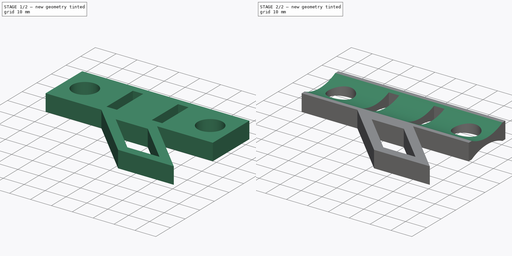
[diagram: build sequence overview — one tinted view per stage of 2, left to right]
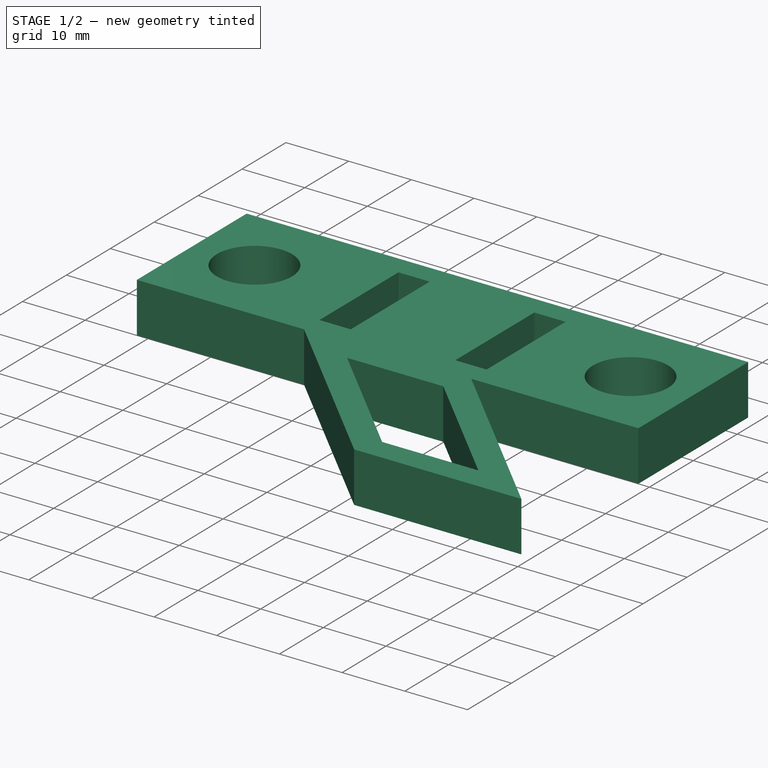
[diagram: stage 1 of 2 — iso view after this stage's code; geometry added in this stage tinted green]
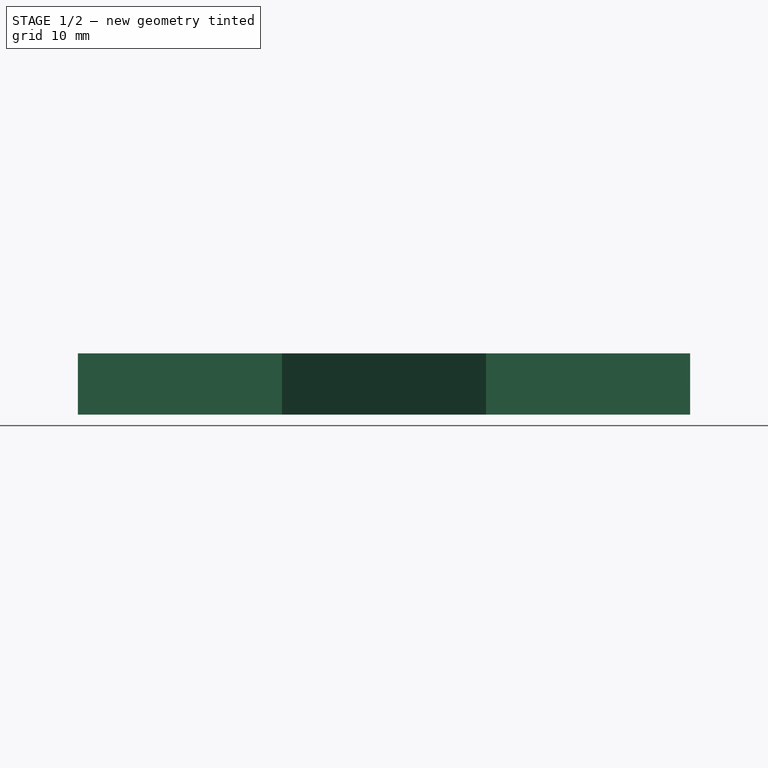
[diagram: stage 1 of 2 — front view after this stage's code; geometry added in this stage tinted green]
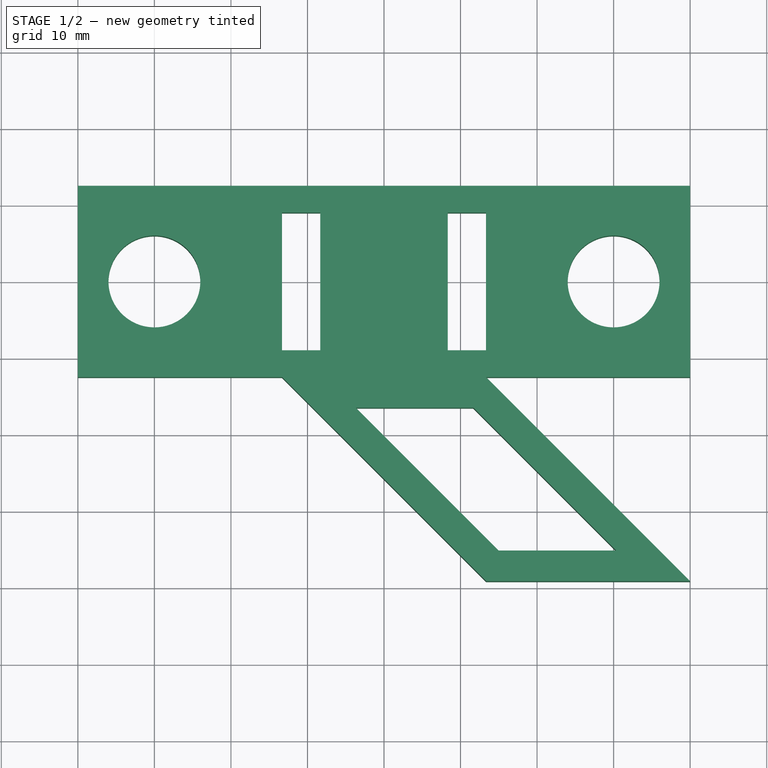
[diagram: stage 1 of 2 — top view after this stage's code; geometry added in this stage tinted green]
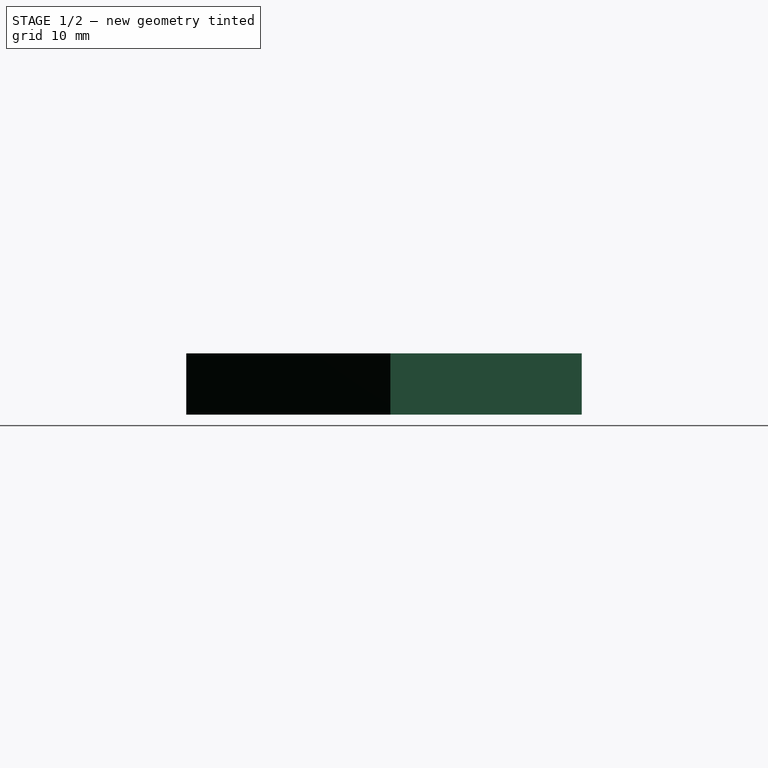
[diagram: stage 1 of 2 — right view after this stage's code; geometry added in this stage tinted green]
FCSTD DOCUMENT  (FreeCAD 0.20R27319 (Git))
Label: TapeMitre
License: All rights reserved
LicenseURL: http://en.wikipedia.org/wiki/All_rights_reserved
objects: Sketcher::SketchObject×2, PartDesign::Pad×1, PartDesign::Pocket×1, PartDesign::Body×1
note: 7 computed .brp shape members not serialized (recipe doc carries the construction recipe); baked Part::Feature solids carry a one-line shape summary decoded from their .brp

FEATURE [Sketcher::SketchObject] Sketch
  FullyConstrained = true
  MapMode = 5
  Support = -> [XY_Plane]
  sketch-geometry (27):
    g0: LineSegment StartX=-40 StartY=12.5 StartZ=0 EndX=-40 EndY=-12.5 EndZ=0
    g1: LineSegment StartX=-40 StartY=-12.5 StartZ=0 EndX=-13.3333 EndY=-12.5 EndZ=0
    g2: LineSegment StartX=40 StartY=-12.5 StartZ=0 EndX=40 EndY=12.5 EndZ=0
    g3: LineSegment StartX=40 StartY=12.5 StartZ=0 EndX=-40 EndY=12.5 EndZ=0
    g4: GeomPoint X=0 Y=0 Z=0
    g5: LineSegment StartX=-13.3333 StartY=-12.5 StartZ=0 EndX=13.3333 EndY=-39.1667 EndZ=0
    g6: LineSegment StartX=13.3333 StartY=-39.1667 StartZ=0 EndX=40 EndY=-39.1667 EndZ=0
    g7: LineSegment StartX=40 StartY=-39.1667 StartZ=0 EndX=13.3333 EndY=-12.5 EndZ=0
    g8: LineSegment StartX=13.3333 StartY=-12.5 StartZ=0 EndX=40 EndY=-12.5 EndZ=0
    g9: LineSegment StartX=-13.3333 StartY=9 StartZ=0 EndX=-13.3333 EndY=-9 EndZ=0
    g10: LineSegment StartX=-13.3333 StartY=-9 StartZ=0 EndX=-8.33333 EndY=-9 EndZ=0
    g11: LineSegment StartX=-8.33333 StartY=-9 StartZ=0 EndX=-8.33333 EndY=9 EndZ=0
    g12: LineSegment StartX=-8.33333 StartY=9 StartZ=0 EndX=-13.3333 EndY=9 EndZ=0
    g13: GeomPoint X=-10.8333 Y=0 Z=0
    g14: LineSegment StartX=8.33333 StartY=9 StartZ=0 EndX=8.33333 EndY=-9 EndZ=0
    g15: LineSegment StartX=8.33333 StartY=-9 StartZ=0 EndX=13.3333 EndY=-9 EndZ=0
    g16: LineSegment StartX=13.3333 StartY=-9 StartZ=0 EndX=13.3333 EndY=9 EndZ=0
    g17: LineSegment StartX=13.3333 StartY=9 StartZ=0 EndX=8.33333 EndY=9 EndZ=0
    g18: GeomPoint X=10.8333 Y=0 Z=0
    g19: Circle CenterX=-30 CenterY=0 CenterZ=0 NormalX=0 NormalY=0 NormalZ=1 AngleXU=0 Radius=6
    g20: Circle CenterX=30 CenterY=0 CenterZ=0 NormalX=0 NormalY=0 NormalZ=1 AngleXU=0 Radius=6
    g21: LineSegment StartX=-3.67648 StartY=-16.5 StartZ=0 EndX=11.6765 EndY=-16.5 EndZ=0
    g22: LineSegment StartX=11.6765 StartY=-16.5 StartZ=0 EndX=30.3431 EndY=-35.1667 EndZ=0
    g23: LineSegment StartX=30.3431 StartY=-35.1667 StartZ=0 EndX=14.9902 EndY=-35.1667 EndZ=0
    g24: LineSegment StartX=14.9902 StartY=-35.1667 StartZ=0 EndX=-3.67648 EndY=-16.5 EndZ=0
    g25: LineSegment StartX=30.3431 StartY=-35.1667 StartZ=0 EndX=33.1716 EndY=-32.3382 EndZ=0
    g26: LineSegment StartX=-3.67648 StartY=-16.5 StartZ=0 EndX=-6.50491 EndY=-19.3284 EndZ=0
  constraints (73):
    c: Coincident(g0,g1)
    c: Coincident(g8,g2)
    c: Coincident(g2,g3)
    c: Coincident(g3,g0)
    c: Horizontal(g1)
    c: Horizontal(g3)
    c: Vertical(g0)
    c: Vertical(g2)
    c: Symmetric(g8,g0,g4)
    c: Coincident(g4,g-1)
    c: Coincident(g5,g6)
    c: Horizontal(g6)
    c: Coincident(g6,g7)
    c: Coincident(g1,g5)
    c: Coincident(g8,g7)
    c: Equal(g1,g8)
    c: Angle(g1,g5) = 2.35619
    c: Angle(g7,g8) = 0.785398
    c: Vertical(g2,g6)
    c: Coincident(g9,g10)
    c: Coincident(g10,g11)
    c: Coincident(g11,g12)
    c: Coincident(g12,g9)
    c: Horizontal(g10)
    c: Horizontal(g12)
    c: Vertical(g9)
    c: Vertical(g11)
    c: Symmetric(g10,g9,g13)
    c: PointOnObject(g13,g-1)
    c: Coincident(g14,g15)
    c: Coincident(g15,g16)
    c: Coincident(g16,g17)
    c: Coincident(g17,g14)
    c: Horizontal(g15)
    c: Horizontal(g17)
    c: Vertical(g14)
    c: Vertical(g16)
    c: Symmetric(g15,g14,g18)
    c: PointOnObject(g18,g-1)
    c: Equal(g12,g17)
    c: DistanceX(g12,g12) = 5
    c: DistanceY(g0,g0) = 25
    c: DistanceY(g9,g9) = 18
    c: Equal(g6,g1)
    c: DistanceX(g3,g3) = 80
    c: Vertical(g1,g9)
    c: Horizontal(g8)
    c: Horizontal(g1,g7)
    c: Vertical(g15,g7)
    c: Equal(g11,g14)
    c: PointOnObject(g19,g-1)
    c: Radius(g19) = 6
    c: Equal(g19,g20)
    c: Symmetric(g19,g20,g-2)
    c: DistanceX(g0,g19) = 10
    c: Horizontal(g21)
    c: Coincident(g21,g22)
    c: Coincident(g22,g23)
    c: Horizontal(g23)
    c: Coincident(g23,g24)
    c: Coincident(g24,g21)
    c: Parallel(g24,g22)
    c: Parallel(g22,g5)
    c: DistanceY(g5,g23) = 4
    c: DistanceY(g21,g7) = 4
    c: Coincident(g25,g22)
    c: PointOnObject(g25,g7)
    c: Perpendicular(g7,g25)
    c: Distance(g25) = 4
    c: Coincident(g26,g21)
    c: PointOnObject(g26,g5)
    c: Perpendicular(g5,g26)
    c: Distance(g26) = 4
FEATURE [PartDesign::Pad] Pad
  Direction = (0,0,1)
  Length = 8
  Length2 = 10
  Midplane = true
  Profile = -> Sketch
  ReferenceAxis = -> Sketch [N_Axis]
  Type = 0
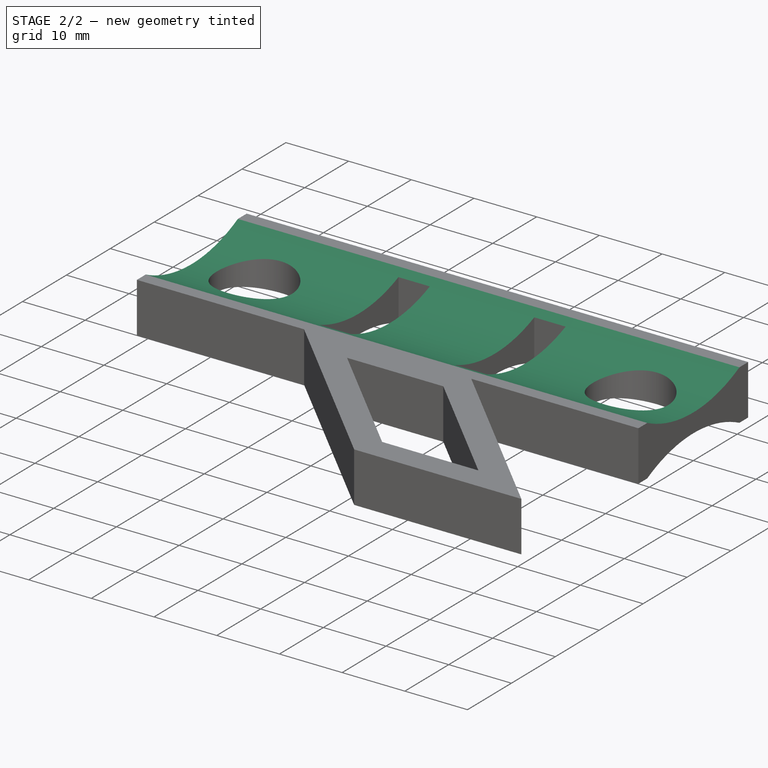
[diagram: stage 2 of 2 — iso view after this stage's code; geometry added in this stage tinted green]
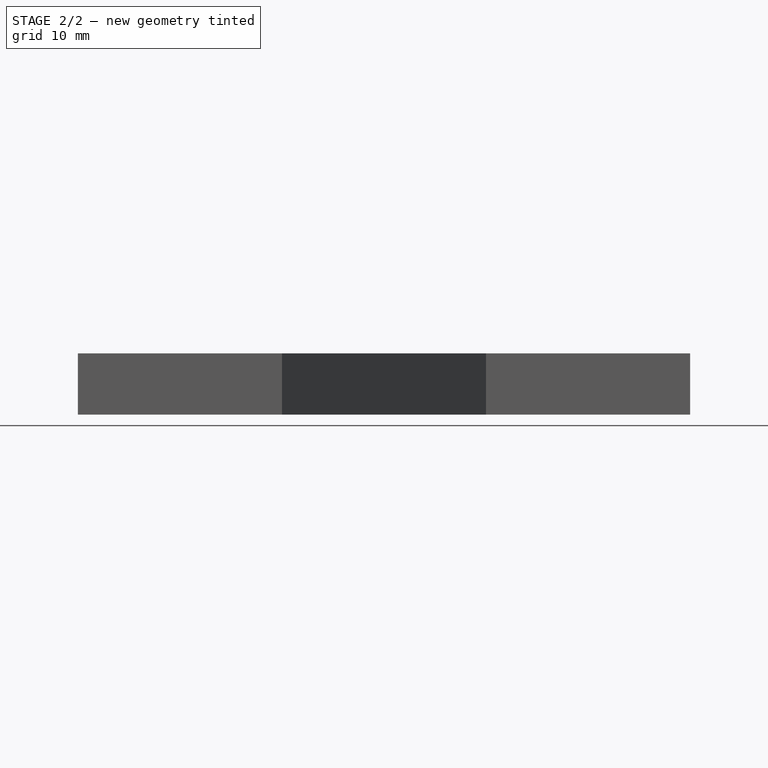
[diagram: stage 2 of 2 — front view after this stage's code; geometry added in this stage tinted green]
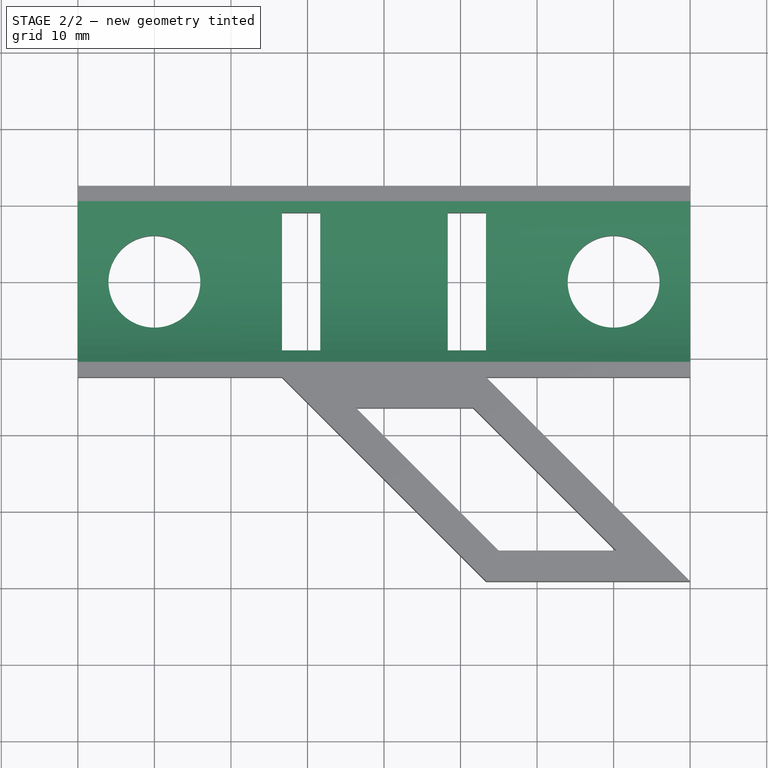
[diagram: stage 2 of 2 — top view after this stage's code; geometry added in this stage tinted green]
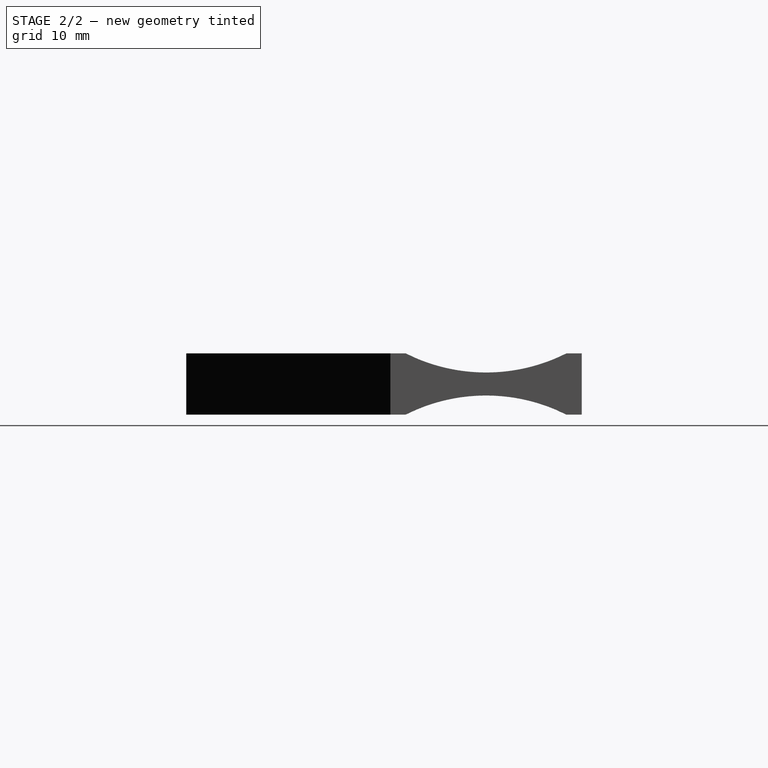
[diagram: stage 2 of 2 — right view after this stage's code; geometry added in this stage tinted green]
FEATURE [Sketcher::SketchObject] Sketch002
  ExternalGeometry = -> [Pad]
  FullyConstrained = true
  MapMode = 5
  Placement = pos=(-40,0,0) rot=(0.57735,-0.57735,-0.57735;2.0944rad)
  sketch-geometry (8):
    g0: ArcOfCircle CenterX=-2.5e-15 CenterY=24.8 CenterZ=0 NormalX=0 NormalY=0 NormalZ=1 AngleXU=0 Radius=23.3 StartAngle=4.2449 EndAngle=5.17988
    g1: LineSegment StartX=-10.5 StartY=4 StartZ=0 EndX=10.5 EndY=4 EndZ=0
    g2: LineSegment StartX=-10.5 StartY=-4 StartZ=0 EndX=10.5 EndY=-4 EndZ=0
    g3: ArcOfCircle CenterX=1.6e-15 CenterY=-24.8 CenterZ=0 NormalX=0 NormalY=0 NormalZ=1 AngleXU=0 Radius=23.3 StartAngle=1.10331 EndAngle=2.03828
    g4: LineSegment StartX=-12.5 StartY=4 StartZ=0 EndX=-10.5 EndY=4 EndZ=0
    g5: LineSegment StartX=10.5 StartY=4 StartZ=0 EndX=12.5 EndY=4 EndZ=0
    g6: GeomPoint X=0 Y=1.5 Z=0
    g7: LineSegment StartX=0 StartY=1.5 StartZ=0 EndX=0 EndY=-1.5 EndZ=0
  constraints (24):
    c: Coincident(g1,g0)
    c: Coincident(g3,g2)
    c: Coincident(g3,g2)
    c: Equal(g3,g0)
    c: Coincident(g1,g0)
    c: Horizontal(g1)
    c: PointOnObject(g0,g-3)
    c: Coincident(g4,g-3)
    c: Coincident(g4,g0)
    c: Coincident(g5,g0)
    c: Coincident(g5,g-3)
    c: Equal(g4,g5)
    c: Horizontal(g2)
    c: PointOnObject(g2,g-4)
    c: Vertical(g0,g2)
    c: Vertical(g2,g0)
    c: DistanceX(g4,g4) = 2
    c: PointOnObject(g6,g0)
    c: PointOnObject(g6,g-2)
    c: DistanceY(g6,g0) = 2.5
    c: Coincident(g7,g6)
    c: PointOnObject(g7,g3)
    c: Vertical(g7)
    c: DistanceY(g7,g7) = 3
FEATURE [PartDesign::Pocket] Pocket
  BaseFeature = -> Pad
  Direction = (1,0,0)
  Length = 5
  Length2 = 5
  Profile = -> Sketch002
  ReferenceAxis = -> Sketch002 [N_Axis]
  Type = 1
FEATURE [PartDesign::Body] Body
  Group = -> [Sketch,Pad,Sketch002,Pocket]
  Origin = -> Origin
  Tip = -> Pocket
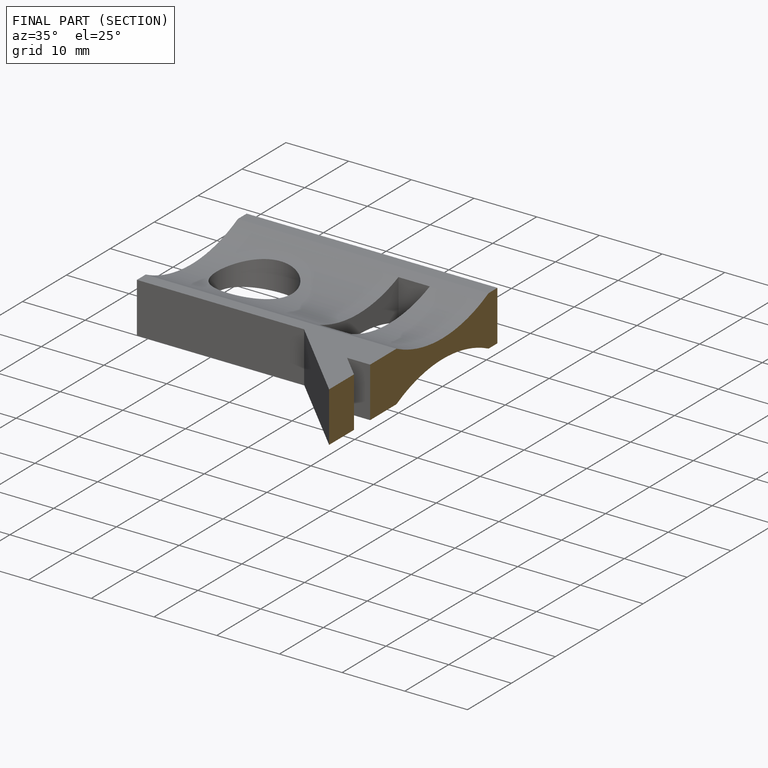
[diagram: finished part — half-section view (interior)]
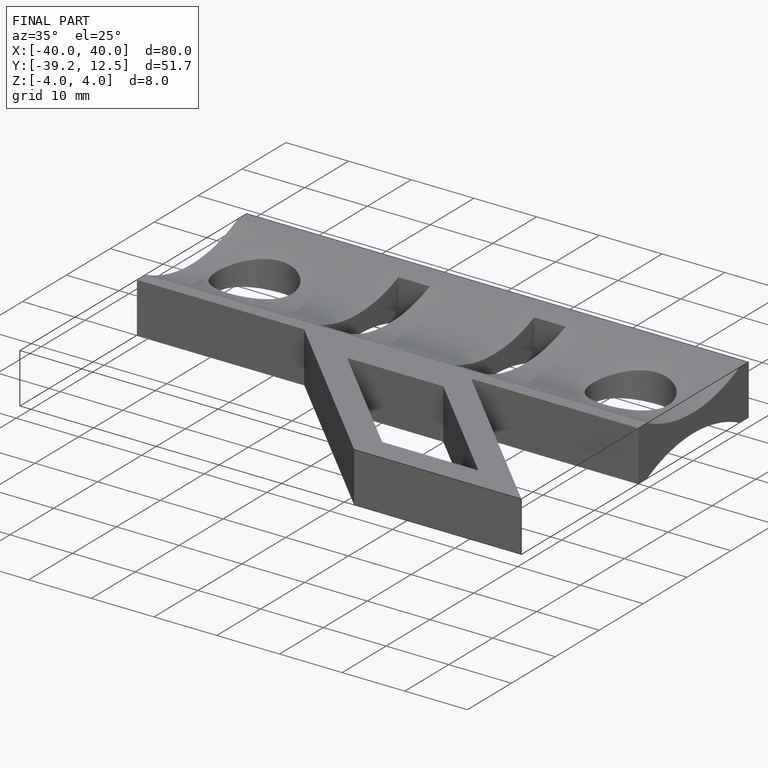
[diagram: finished part — iso view with bounding-box wireframe]
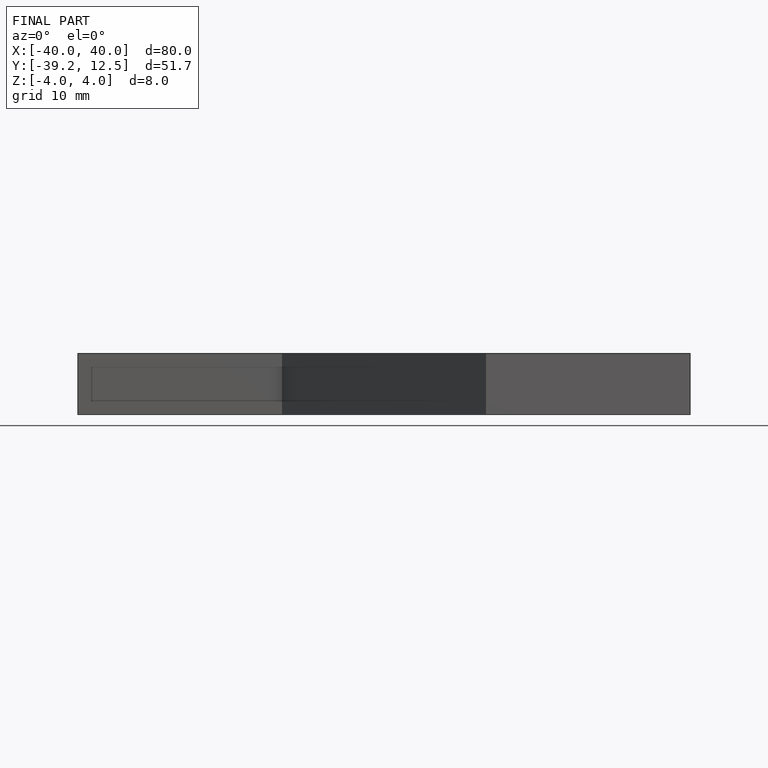
[diagram: finished part — front view with bounding-box wireframe]
